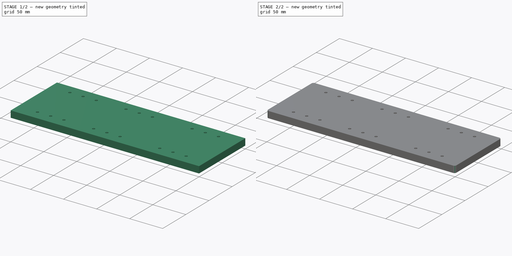
[diagram: build sequence overview — one tinted view per stage of 2, left to right]
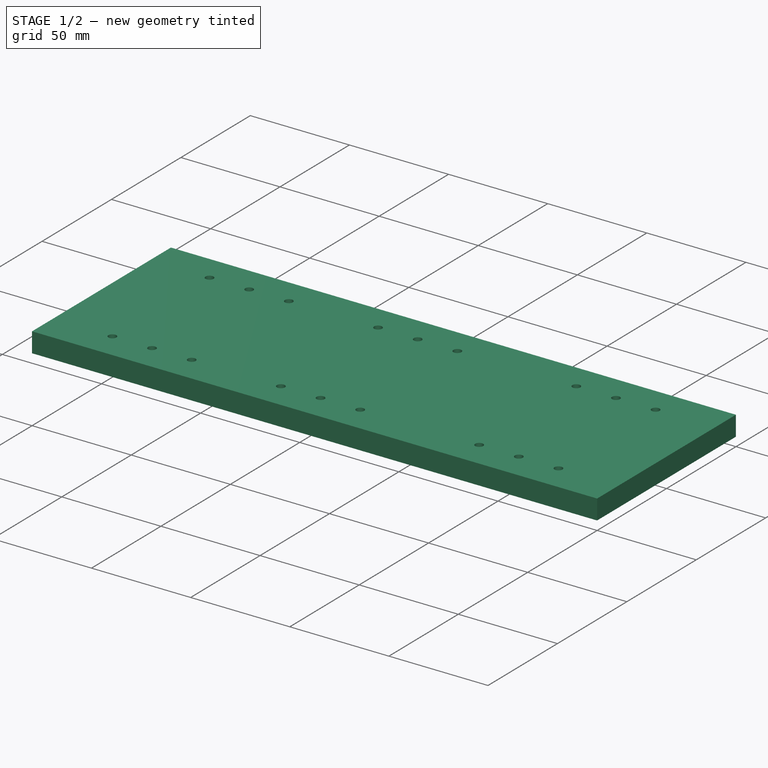
[diagram: stage 1 of 2 — iso view after this stage's code; geometry added in this stage tinted green]
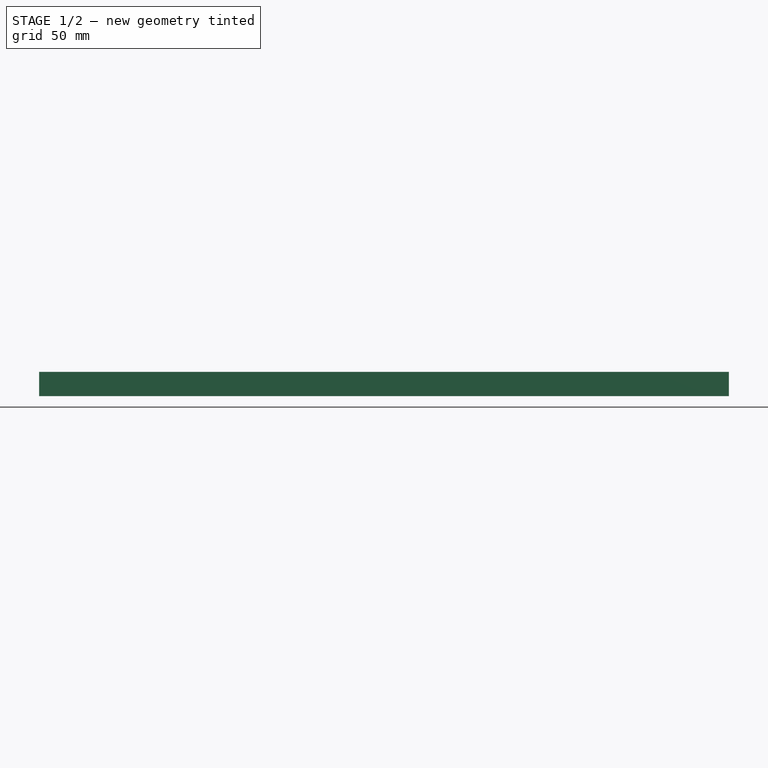
[diagram: stage 1 of 2 — front view after this stage's code; geometry added in this stage tinted green]
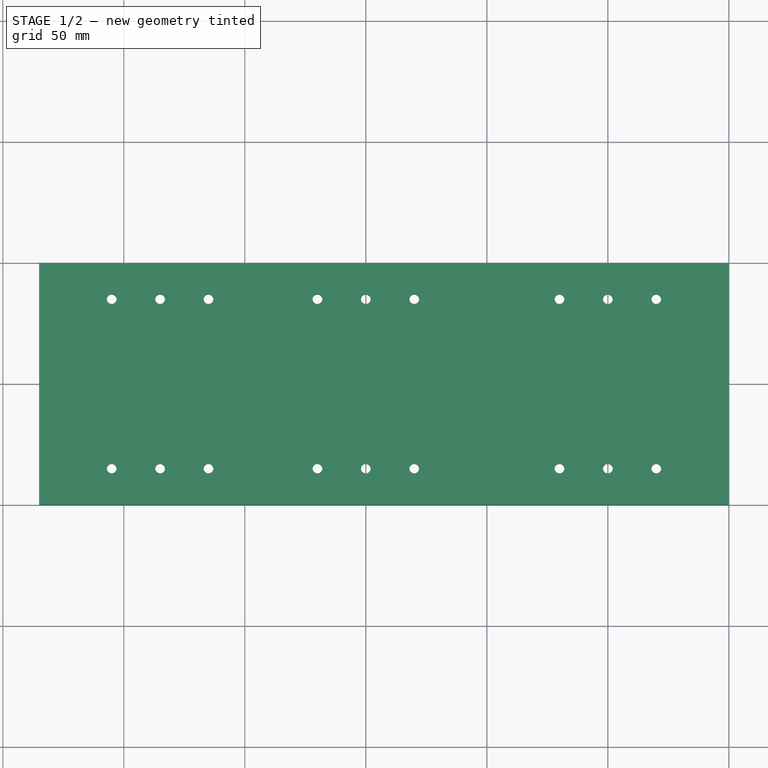
[diagram: stage 1 of 2 — top view after this stage's code; geometry added in this stage tinted green]
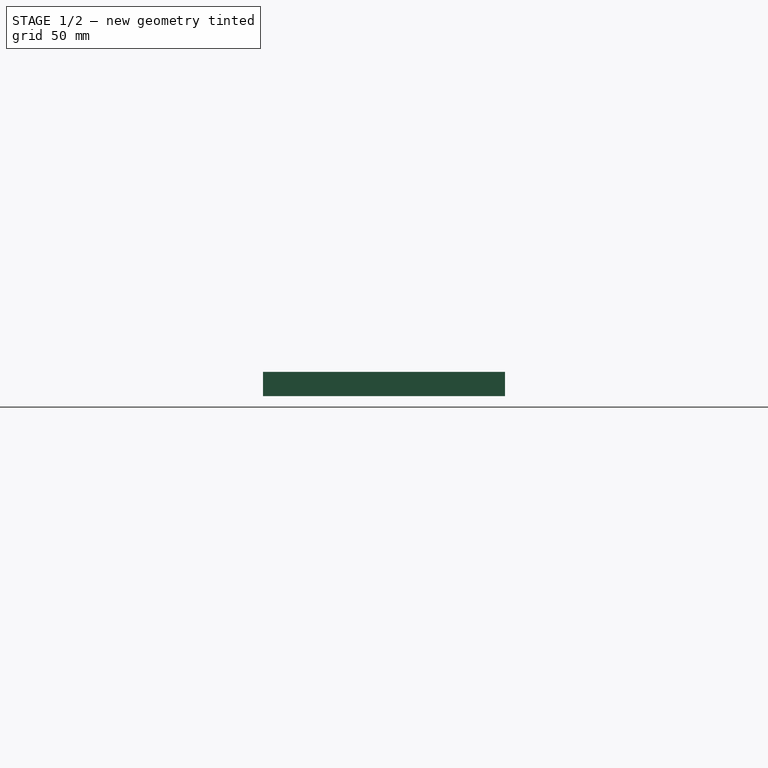
[diagram: stage 1 of 2 — right view after this stage's code; geometry added in this stage tinted green]
FCSTD DOCUMENT  (FreeCAD 0.19R24276 (Git))
Label: Part_100x285
License: All rights reserved
LicenseURL: http://en.wikipedia.org/wiki/All_rights_reserved
objects: Sketcher::SketchObject×1, PartDesign::Pad×1, PartDesign::Fillet×1, PartDesign::Body×1
note: 6 computed .brp shape members not serialized (recipe doc carries the construction recipe); baked Part::Feature solids carry a one-line shape summary decoded from their .brp

FEATURE [Sketcher::SketchObject] Sketch
  FullyConstrained = false
  MapMode = 5
  Support = -> [XY_Plane]
  sketch-geometry (32):
    g0: LineSegment StartX=0 StartY=0 StartZ=0 EndX=200 EndY=0 EndZ=0
    g1: LineSegment StartX=200 StartY=0 StartZ=0 EndX=200 EndY=100 EndZ=0
    g2: LineSegment StartX=200 StartY=100 StartZ=0 EndX=0 EndY=100 EndZ=0
    g3: LineSegment StartX=0 StartY=100 StartZ=0 EndX=0 EndY=0 EndZ=0
    g4: Circle CenterX=30 CenterY=85 CenterZ=0 NormalX=0 NormalY=0 NormalZ=1 AngleXU=0 Radius=2
    g5: Circle CenterX=30 CenterY=15 CenterZ=0 NormalX=0 NormalY=0 NormalZ=1 AngleXU=0 Radius=2
    g6: Circle CenterX=170 CenterY=85 CenterZ=0 NormalX=0 NormalY=0 NormalZ=1 AngleXU=0 Radius=2
    g7: Circle CenterX=170 CenterY=15 CenterZ=0 NormalX=0 NormalY=0 NormalZ=1 AngleXU=0 Radius=2
    g8: Circle CenterX=40 CenterY=90 CenterZ=0 NormalX=0 NormalY=0 NormalZ=1 AngleXU=0 Radius=2.5
    g9: Circle CenterX=80 CenterY=90 CenterZ=0 NormalX=0 NormalY=0 NormalZ=1 AngleXU=0 Radius=2.5
    g10: Circle CenterX=120 CenterY=90 CenterZ=0 NormalX=0 NormalY=0 NormalZ=1 AngleXU=0 Radius=2.5
    g11: Circle CenterX=160 CenterY=90 CenterZ=0 NormalX=0 NormalY=0 NormalZ=1 AngleXU=0 Radius=2.5
    g12: LineSegment StartX=40 StartY=90 StartZ=0 EndX=40 EndY=30.7459 EndZ=0
    g13: Circle CenterX=50 CenterY=85 CenterZ=0 NormalX=0 NormalY=0 NormalZ=1 AngleXU=0 Radius=2
    g14: Circle CenterX=50 CenterY=15 CenterZ=0 NormalX=0 NormalY=0 NormalZ=1 AngleXU=0 Radius=2
    g15: LineSegment StartX=100 StartY=73.549 StartZ=0 EndX=100 EndY=0 EndZ=0
    g16: Circle CenterX=150 CenterY=85 CenterZ=0 NormalX=0 NormalY=0 NormalZ=1 AngleXU=0 Radius=2
    g17: Circle CenterX=150 CenterY=15 CenterZ=0 NormalX=0 NormalY=0 NormalZ=1 AngleXU=0 Radius=2
    g18: Circle CenterX=70 CenterY=85 CenterZ=0 NormalX=0 NormalY=0 NormalZ=1 AngleXU=0 Radius=2
    g19: Circle CenterX=70 CenterY=15 CenterZ=0 NormalX=0 NormalY=0 NormalZ=1 AngleXU=0 Radius=2
    g20: Circle CenterX=130 CenterY=15 CenterZ=0 NormalX=0 NormalY=0 NormalZ=1 AngleXU=0 Radius=2
    g21: Circle CenterX=130 CenterY=85 CenterZ=0 NormalX=0 NormalY=0 NormalZ=1 AngleXU=0 Radius=2
    g22: LineSegment StartX=200 StartY=0 StartZ=0 EndX=-85 EndY=0 EndZ=0
    g23: LineSegment StartX=-85 StartY=0 StartZ=0 EndX=-85 EndY=100 EndZ=0
    g24: LineSegment StartX=-85 StartY=100 StartZ=0 EndX=200 EndY=100 EndZ=0
    g25: LineSegment StartX=200 StartY=100 StartZ=0 EndX=200 EndY=0 EndZ=0
    g26: Circle CenterX=-35 CenterY=15 CenterZ=0 NormalX=0 NormalY=0 NormalZ=1 AngleXU=0 Radius=2
    g27: Circle CenterX=-15 CenterY=15 CenterZ=0 NormalX=0 NormalY=0 NormalZ=1 AngleXU=0 Radius=2
    g28: Circle CenterX=-55 CenterY=15 CenterZ=0 NormalX=0 NormalY=0 NormalZ=1 AngleXU=0 Radius=2
    g29: Circle CenterX=-55 CenterY=85 CenterZ=0 NormalX=0 NormalY=0 NormalZ=1 AngleXU=0 Radius=2
    g30: Circle CenterX=-35 CenterY=85 CenterZ=0 NormalX=0 NormalY=0 NormalZ=1 AngleXU=0 Radius=2
    g31: Circle CenterX=-15 CenterY=85 CenterZ=0 NormalX=0 NormalY=0 NormalZ=1 AngleXU=0 Radius=2
  constraints (91):
    c: Coincident(g0,g1)
    c: Coincident(g1,g2)
    c: Coincident(g2,g3)
    c: Coincident(g3,g0)
    c: Horizontal(g0)
    c: Horizontal(g2)
    c: Vertical(g1)
    c: Vertical(g3)
    c: Coincident(g0,g-1)
    c: DistanceY(g1,g1) = 100
    c: DistanceX(g0,g0) = 200
    c: Horizontal(g4,g6)
    c: Horizontal(g5,g7)
    c: Vertical(g4,g5)
    c: Vertical(g6,g7)
    c: Diameter(g4) = 4
    c: Equal(g4,g6)
    c: Equal(g4,g7)
    c: Equal(g4,g5)
    c: DistanceX(g0,g5) = 30
    c: DistanceX(g7,g0) = 30
    c: DistanceY(g4,g2) = 15
    c: DistanceY(g0,g5) = 15
    c: Horizontal(g8,g9)
    c: Horizontal(g9,g10)
    c: Horizontal(g10,g11)
    c: Diameter(g8) = 5
    c: Equal(g8,g9)
    c: Equal(g8,g10)
    c: Equal(g8,g11)
    c: DistanceX(g2,g8) = 40
    c: DistanceX(g8,g9) = 40
    c: DistanceX(g9,g10) = 40
    c: DistanceX(g10,g11) = 40
    c: DistanceY(g8,g2) = 10
    c: Coincident(g12,g8)
    c: Vertical(g12)
    c: Diameter(g13) = 4
    c: Equal(g13,g14)
    c: Horizontal(g4,g13)
    c: Horizontal(g5,g14)
    c: Vertical(g14,g13)
    c: DistanceX(g8,g13) = 10
    c: Vertical(g15)
    c: Symmetric(g0,g0,g15)
    c: Diameter(g16) = 4
    c: Equal(g16,g17)
    c: Vertical(g16,g17)
    c: Horizontal(g16,g6)
    c: Horizontal(g17,g7)
    c: DistanceX(g17,g7) = 20
    c: Equal(g13,g18) = 4
    c: Equal(g18,g19)
    c: Vertical(g19,g18)
    c: DistanceX(g14,g19) = 20
    c: Horizontal(g14,g19)
    c: Horizontal(g13,g18)
    c: Equal(g21,g20)
    c: Vertical(g20,g21)
    c: Horizontal(g21,g16)
    c: Horizontal(g20,g17)
    c: DistanceX(g20,g17) = 20
    c: Coincident(g22,g23)
    c: Coincident(g23,g24)
    c: Coincident(g24,g25)
    c: Coincident(g25,g22)
    c: Horizontal(g22)
    c: Horizontal(g24)
    c: Vertical(g23)
    c: Vertical(g25)
    c: Coincident(g22,g0)
    c: Horizontal(g23,g2)
    c: DistanceX(g22,g22) = 285
    c: Vertical(g29,g28)
    c: Equal(g4,g29) = 4
    c: Equal(g29,g28)
    c: Equal(g13,g30) = 4
    c: Equal(g30,g26)
    c: Horizontal(g29,g30)
    c: Horizontal(g28,g26)
    c: Vertical(g26,g30)
    c: Equal(g30,g31) = 4
    c: Equal(g31,g27)
    c: Vertical(g27,g31)
    c: DistanceX(g26,g27) = 20
    c: Horizontal(g26,g27)
    c: Horizontal(g30,g31)
    c: Horizontal(g31,g4)
    c: DistanceX(g29,g30) = 20
    c: DistanceX(g23,g29) = 30
    c: Horizontal(g27,g5)
FEATURE [PartDesign::Pad] Pad
  Direction = (1,1,1)
  Length = 10
  Length2 = 100
  Profile = -> Sketch
  Type = 0
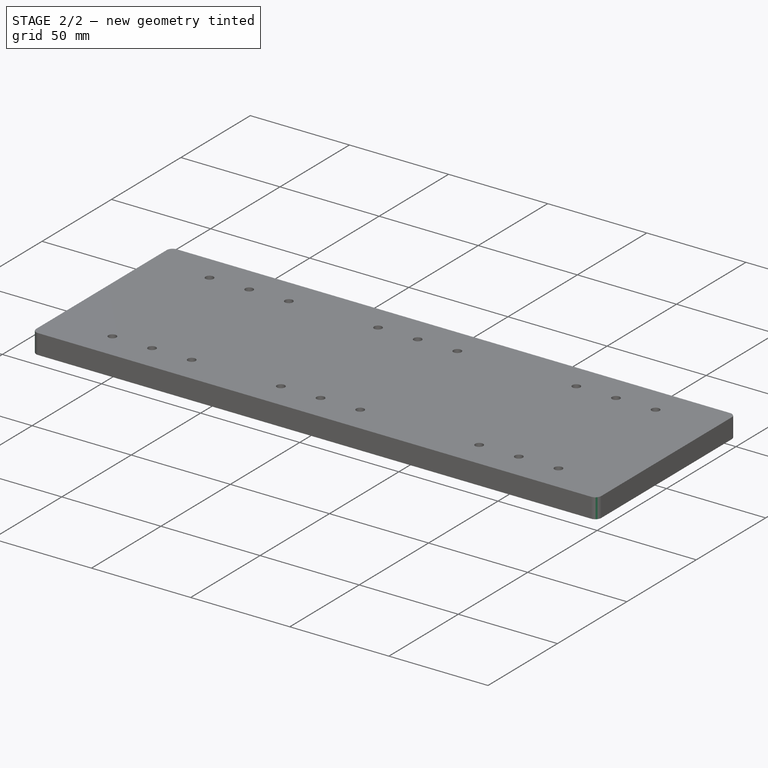
[diagram: stage 2 of 2 — iso view after this stage's code; geometry added in this stage tinted green]
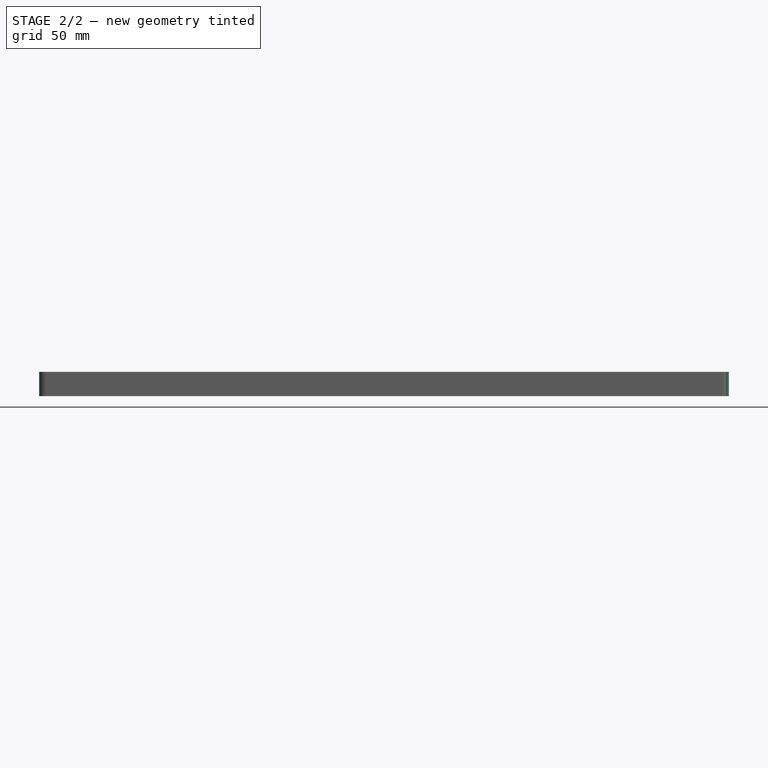
[diagram: stage 2 of 2 — front view after this stage's code; geometry added in this stage tinted green]
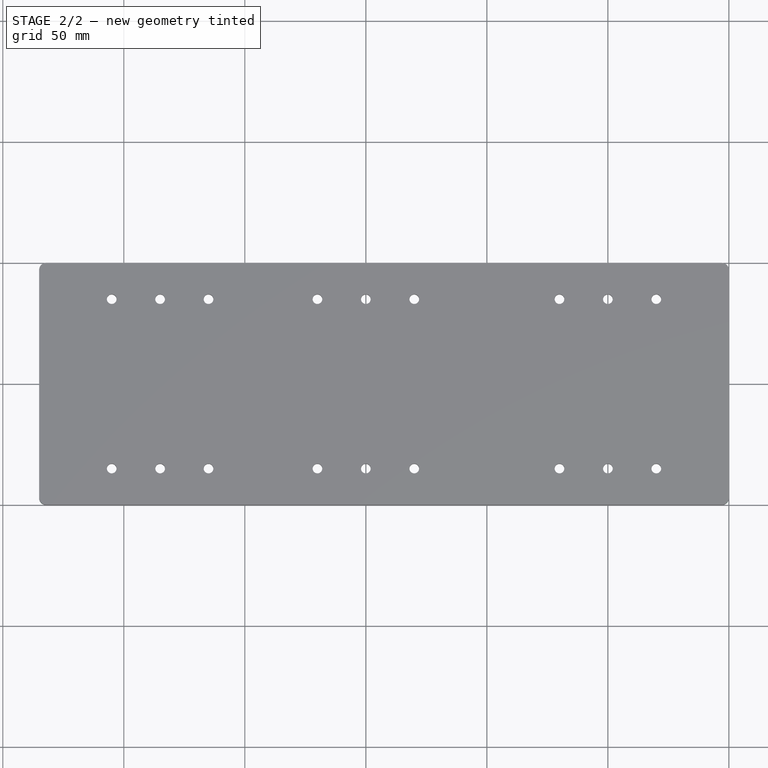
[diagram: stage 2 of 2 — top view after this stage's code; geometry added in this stage tinted green]
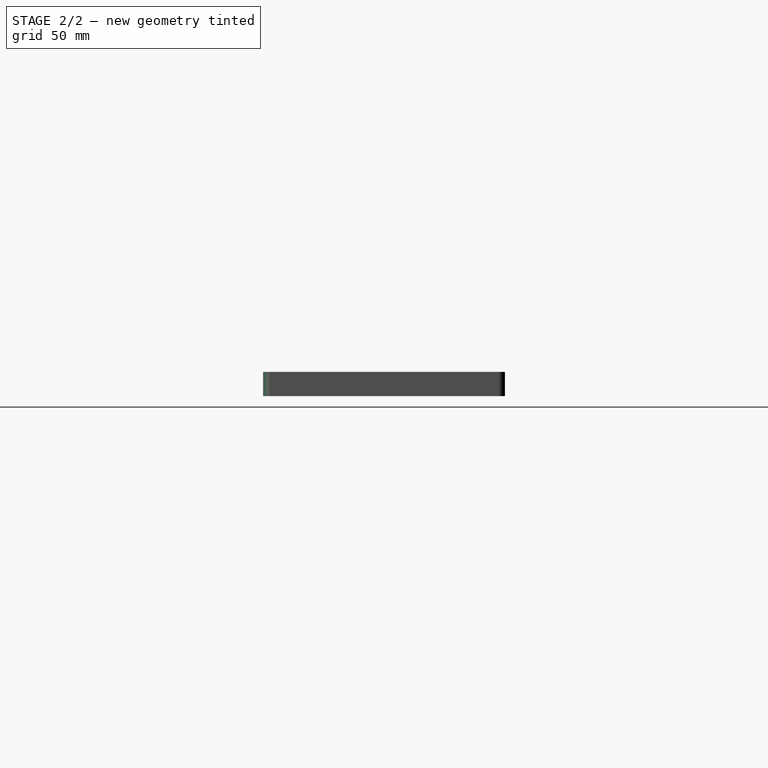
[diagram: stage 2 of 2 — right view after this stage's code; geometry added in this stage tinted green]
FEATURE [PartDesign::Fillet] Fillet
  Base = -> Pad [Edge2,Edge1,Edge5,Edge8]
  BaseFeature = -> Pad
  Radius = 3
  SupportTransform = false
FEATURE [PartDesign::Body] Body
  Group = -> [Sketch,Pad,Fillet]
  Origin = -> Origin
  Tip = -> Fillet
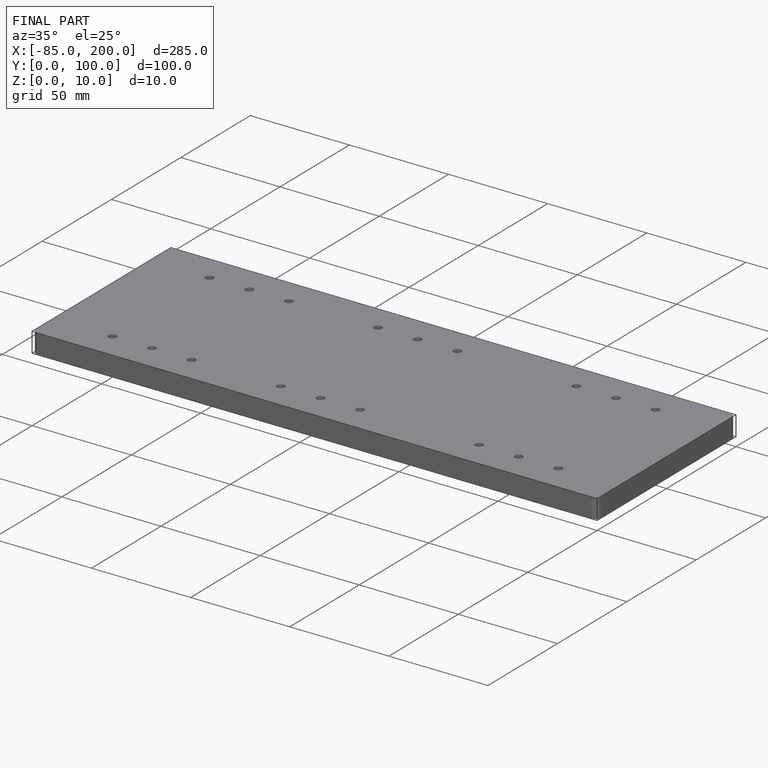
[diagram: finished part — iso view with bounding-box wireframe]
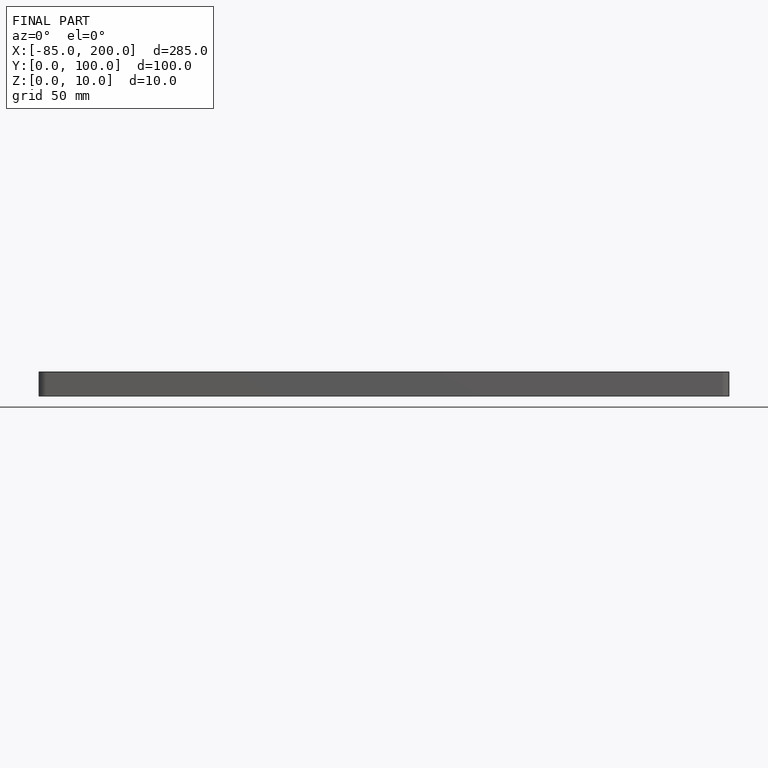
[diagram: finished part — front view with bounding-box wireframe]
